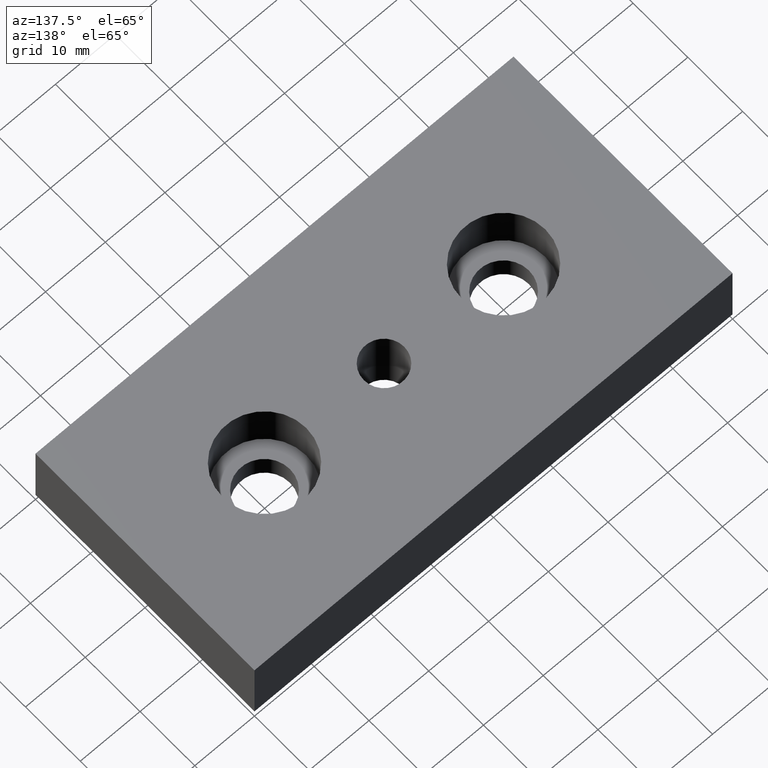
[diagram: clean part render]
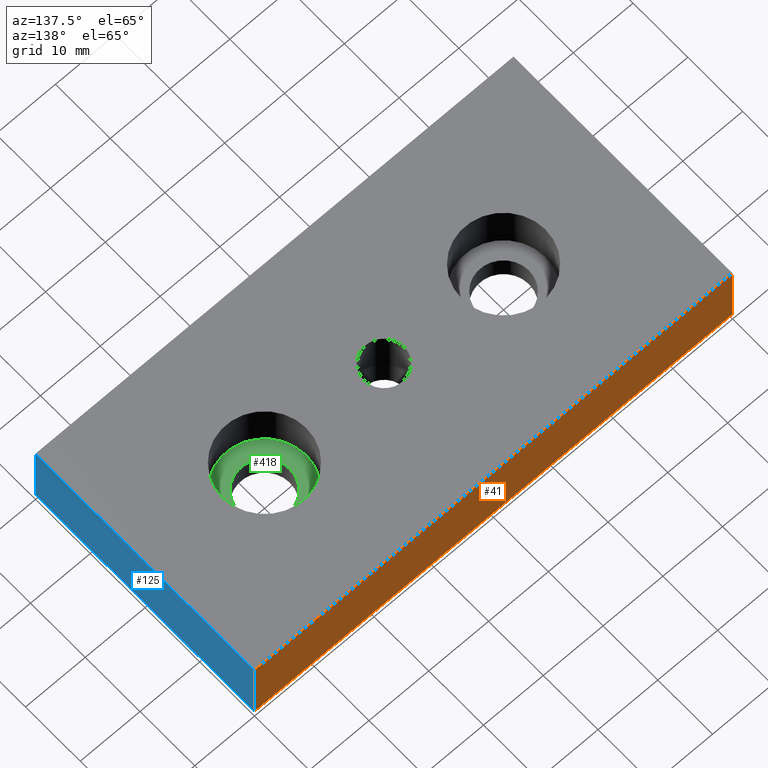
[diagram: same view with three faces highlighted in distinct colors, each labeled with its STEP entity id]
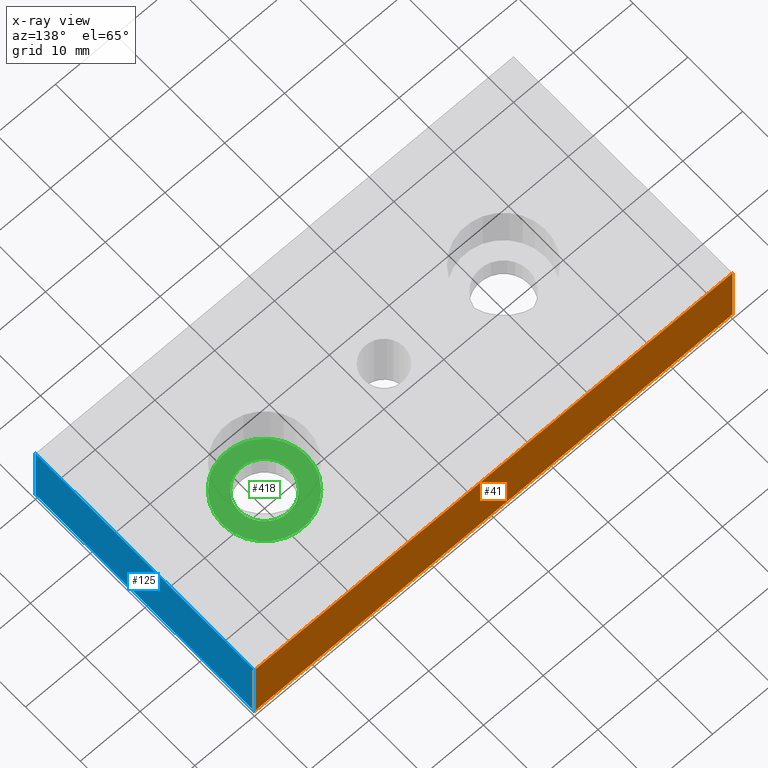
[diagram: x-ray of the same camera — body ghosted, the three highlighted faces saturated]
A machine part, auxiliary view with three faces highlighted in distinct colors.
The next image is the same camera in x-ray (body ghosted, the three faces saturated) — at least one of them is partly hidden behind the body in this view.
Their STEP definitions:

[orange] entity #41 — the highlighted planar face has unit normal (0, -1, 0).
#2=CARTESIAN_POINT('',(39.999991119999947,20.000000000000114,12.0));
#3=DIRECTION('',(0.0,-1.0,0.0));
#4=DIRECTION('',(-1.0,0.0,0.0));
#5=AXIS2_PLACEMENT_3D('',#2,#3,#4);
#6=PLANE('',#5);
#7=CARTESIAN_POINT('',(39.999991119999947,20.000000000000114,12.0));
#8=VERTEX_POINT('',#7);
#9=CARTESIAN_POINT('',(39.999991119999947,20.000000000000114,0.0));
#10=VERTEX_POINT('',#9);
#11=CARTESIAN_POINT('',(39.999991119999947,20.000000000000114,12.0));
#12=DIRECTION('',(0.0,0.0,-1.0));
#13=VECTOR('',#12,12.0);
#14=LINE('',#11,#13);
#15=EDGE_CURVE('',#8,#10,#14,.T.);
#16=ORIENTED_EDGE('',*,*,#15,.T.);
#17=CARTESIAN_POINT('',(-39.999991120000061,20.000000000000114,0.0));
#18=VERTEX_POINT('',#17);
#19=CARTESIAN_POINT('',(39.999991119999947,20.000000000000114,0.0));
#20=DIRECTION('',(-1.0,0.0,0.0));
#21=VECTOR('',#20,79.999982240000008);
#22=LINE('',#19,#21);
#23=EDGE_CURVE('',#10,#18,#22,.T.);
#24=ORIENTED_EDGE('',*,*,#23,.T.);
#25=CARTESIAN_POINT('',(-39.999991120000061,20.000000000000114,12.0));
#26=VERTEX_POINT('',#25);
#27=CARTESIAN_POINT('',(-39.999991120000061,20.000000000000114,12.0));
#28=DIRECTION('',(0.0,0.0,-1.0));
#29=VECTOR('',#28,12.0);
#30=LINE('',#27,#29);
#31=EDGE_CURVE('',#26,#18,#30,.T.);
#32=ORIENTED_EDGE('',*,*,#31,.F.);
#33=CARTESIAN_POINT('',(39.999991119999947,20.000000000000114,12.0));
#34=DIRECTION('',(-1.0,0.0,0.0));
#35=VECTOR('',#34,79.999982240000008);
#36=LINE('',#33,#35);
#37=EDGE_CURVE('',#8,#26,#36,.T.);
#38=ORIENTED_EDGE('',*,*,#37,.F.);
#39=EDGE_LOOP('',(#16,#24,#32,#38));
#40=FACE_OUTER_BOUND('',#39,.T.);
#41=ADVANCED_FACE('',(#40),#6,.F.);

[blue] entity #125 — the highlighted planar face has unit normal (-1, 0, 0).
#7=CARTESIAN_POINT('',(39.999991119999947,20.000000000000114,12.0));
#8=VERTEX_POINT('',#7);
#9=CARTESIAN_POINT('',(39.999991119999947,20.000000000000114,0.0));
#10=VERTEX_POINT('',#9);
#11=CARTESIAN_POINT('',(39.999991119999947,20.000000000000114,12.0));
#12=DIRECTION('',(0.0,0.0,-1.0));
#13=VECTOR('',#12,12.0);
#14=LINE('',#11,#13);
#15=EDGE_CURVE('',#8,#10,#14,.T.);
#79=CARTESIAN_POINT('',(39.999991119999947,-19.999991120000004,0.0));
#80=VERTEX_POINT('',#79);
#87=CARTESIAN_POINT('',(39.999991119999947,-19.999991120000004,12.0));
#88=VERTEX_POINT('',#87);
#89=CARTESIAN_POINT('',(39.999991119999947,-19.999991120000004,12.0));
#90=DIRECTION('',(0.0,0.0,-1.0));
#91=VECTOR('',#90,12.0);
#92=LINE('',#89,#91);
#93=EDGE_CURVE('',#88,#80,#92,.T.);
#104=CARTESIAN_POINT('',(39.999991119999947,-19.999991120000004,12.0));
#105=DIRECTION('',(-1.0,0.0,0.0));
#106=DIRECTION('',(0.0,1.0,0.0));
#107=AXIS2_PLACEMENT_3D('',#104,#105,#106);
#108=PLANE('',#107);
#109=ORIENTED_EDGE('',*,*,#93,.T.);
#110=CARTESIAN_POINT('',(39.999991119999947,-19.999991120000004,0.0));
#111=DIRECTION('',(0.0,1.0,0.0));
#112=VECTOR('',#111,39.999991120000118);
#113=LINE('',#110,#112);
#114=EDGE_CURVE('',#80,#10,#113,.T.);
#115=ORIENTED_EDGE('',*,*,#114,.T.);
#116=ORIENTED_EDGE('',*,*,#15,.F.);
#117=CARTESIAN_POINT('',(39.999991119999947,-19.999991120000004,12.0));
#118=DIRECTION('',(0.0,1.0,0.0));
#119=VECTOR('',#118,39.999991120000118);
#120=LINE('',#117,#119);
#121=EDGE_CURVE('',#88,#8,#120,.T.);
#122=ORIENTED_EDGE('',*,*,#121,.F.);
#123=EDGE_LOOP('',(#109,#115,#116,#122));
#124=FACE_OUTER_BOUND('',#123,.T.);
#125=ADVANCED_FACE('',(#124),#108,.F.);

[green] entity #418 — the highlighted planar face has unit normal (0, 0, -1).
#359=CARTESIAN_POINT('',(24.249995559999945,0.000004439999998,3.999999999999998));
#360=VERTEX_POINT('',#359);
#370=CARTESIAN_POINT('',(15.749995559999945,0.000004439999998,4.0));
#371=VERTEX_POINT('',#370);
#372=CARTESIAN_POINT('',(19.999995559999945,0.000004439999998,4.0));
#373=DIRECTION('',(0.0,6.123234E-017,1.0));
#374=DIRECTION('',(1.0,0.0,0.0));
#375=AXIS2_PLACEMENT_3D('',#372,#373,#374);
#376=CIRCLE('',#375,4.250000000000000);
#377=EDGE_CURVE('',#360,#371,#376,.T.);
#379=CARTESIAN_POINT('',(19.999995559999945,0.000004439999998,4.0));
#380=DIRECTION('',(0.0,6.123234E-017,1.0));
#381=DIRECTION('',(1.0,0.0,0.0));
#382=AXIS2_PLACEMENT_3D('',#379,#380,#381);
#383=CIRCLE('',#382,4.250000000000000);
#384=EDGE_CURVE('',#371,#360,#383,.T.);
#389=CARTESIAN_POINT('',(5.999998667999932,-13.999992452000015,4.000000000000001));
#390=DIRECTION('',(0.0,0.0,-1.0));
#391=DIRECTION('',(0.0,1.0,0.0));
#392=AXIS2_PLACEMENT_3D('',#389,#390,#391);
#393=PLANE('',#392);
#394=CARTESIAN_POINT('',(26.999994005999952,0.000004439999998,4.0));
#395=VERTEX_POINT('',#394);
#396=CARTESIAN_POINT('',(12.999997113999939,0.000004439999998,4.0));
#397=VERTEX_POINT('',#396);
#398=CARTESIAN_POINT('',(19.999995559999945,0.000004439999998,4.0));
#399=DIRECTION('',(0.0,6.123234E-017,1.0));
#400=DIRECTION('',(1.0,0.0,0.0));
#401=AXIS2_PLACEMENT_3D('',#398,#399,#400);
#402=CIRCLE('',#401,6.999998446000006);
#403=EDGE_CURVE('',#395,#397,#402,.T.);
#404=ORIENTED_EDGE('',*,*,#403,.T.);
#405=CARTESIAN_POINT('',(19.999995559999945,0.000004439999998,4.0));
#406=DIRECTION('',(0.0,6.123234E-017,1.0));
#407=DIRECTION('',(1.0,0.0,0.0));
#408=AXIS2_PLACEMENT_3D('',#405,#406,#407);
#409=CIRCLE('',#408,6.999998446000006);
#410=EDGE_CURVE('',#397,#395,#409,.T.);
#411=ORIENTED_EDGE('',*,*,#410,.T.);
#412=EDGE_LOOP('',(#404,#411));
#413=FACE_OUTER_BOUND('',#412,.T.);
#414=ORIENTED_EDGE('',*,*,#384,.F.);
#415=ORIENTED_EDGE('',*,*,#377,.F.);
#416=EDGE_LOOP('',(#414,#415));
#417=FACE_BOUND('',#416,.T.);
#418=ADVANCED_FACE('',(#413,#417),#393,.F.);